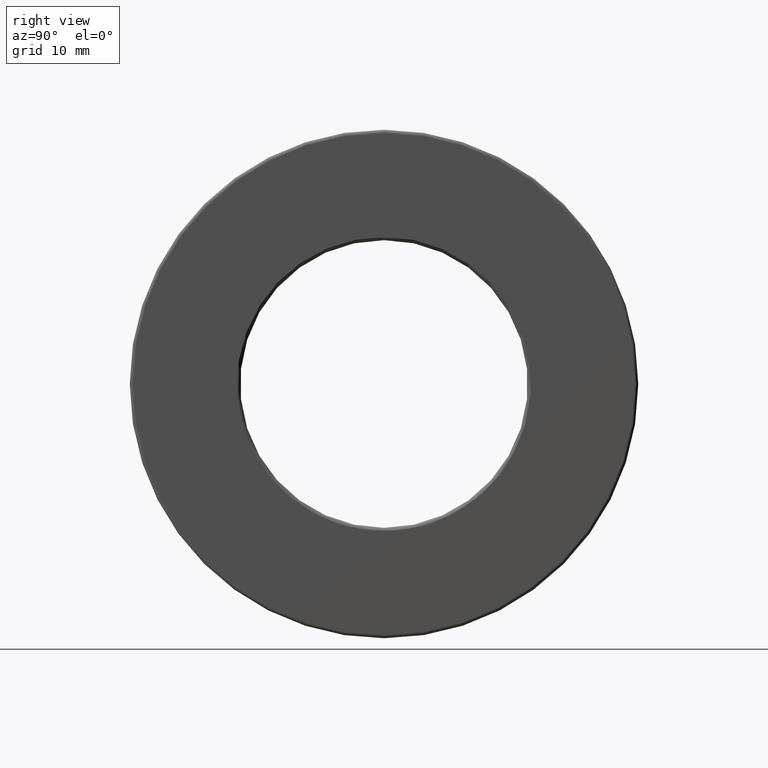
[diagram: clean part render]
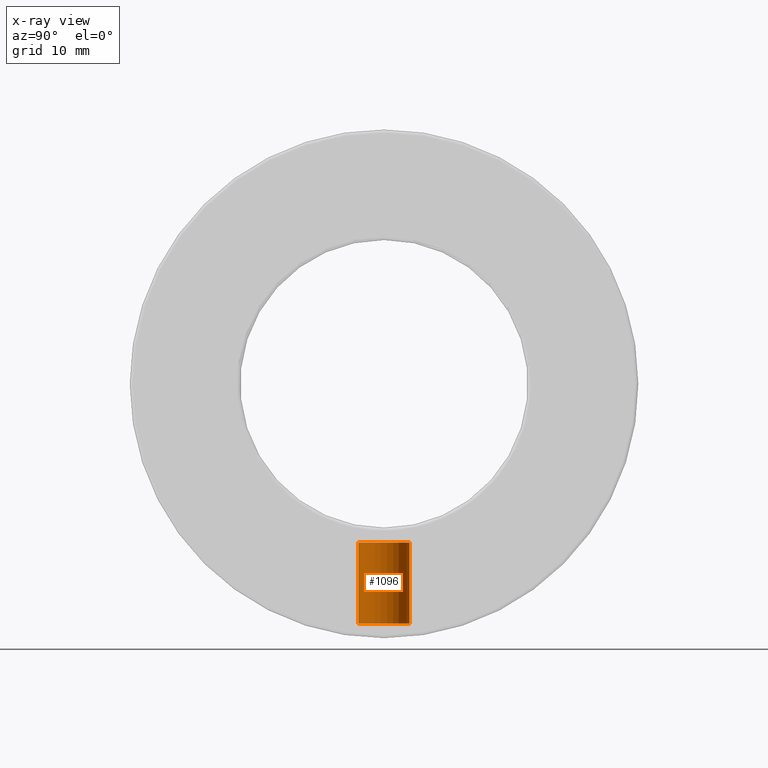
[diagram: x-ray — body ghosted, one internal face saturated and labeled with its STEP entity id]
A machine part, right view, then the same camera in x-ray: the body is ghosted and one INTERNAL B-rep face — a face not visible from any outside direction — is saturated and labeled: STEP entity #1096.
In plain terms, the highlighted cylindrical surface (bore or boss wall) has radius 3.9624 mm, axis along (0, -0, -1).
Its self-contained STEP definition (entity closure, byte-faithful):
#10 = CARTESIAN_POINT ( 'NONE',  ( 0.0000000000000000000, -5.086651875527089600E-015, -1.456874999999999900 ) ) ;
#40 = EDGE_LOOP ( 'NONE', ( #623 ) ) ;
#152 = DIRECTION ( 'NONE',  ( 0.0000000000000000000, 1.000000000000000000, -3.502369222646491400E-015 ) ) ;
#156 = EDGE_LOOP ( 'NONE', ( #634 ) ) ;
#326 = CIRCLE ( 'NONE', #1168, 0.1559999999999998600 ) ;
#367 = EDGE_CURVE ( 'NONE', #727, #727, #622, .T. ) ;
#414 = AXIS2_PLACEMENT_3D ( 'NONE', #626, #1071, #1314 ) ;
#440 = CARTESIAN_POINT ( 'NONE',  ( 0.0000000000000000000, 0.1559999999999966100, -0.9650000000000006400 ) ) ;
#445 = CARTESIAN_POINT ( 'NONE',  ( 0.0000000000000000000, -3.369279491983624200E-015, -0.9650000000000000800 ) ) ;
#508 = VERTEX_POINT ( 'NONE', #906 ) ;
#622 = CIRCLE ( 'NONE', #1080, 0.1560000000000000000 ) ;
#623 = ORIENTED_EDGE ( 'NONE', *, *, #367, .T. ) ;
#626 = CARTESIAN_POINT ( 'NONE',  ( 0.0000000000000000000, 0.0000000000000000000, 0.0000000000000000000 ) ) ;
#634 = ORIENTED_EDGE ( 'NONE', *, *, #1351, .F. ) ;
#666 = CYLINDRICAL_SURFACE ( 'NONE', #414, 0.1559999999999999200 ) ;
#708 = DIRECTION ( 'NONE',  ( 0.0000000000000000000, -3.491481338843133400E-015, -1.000000000000000000 ) ) ;
#710 = FACE_OUTER_BOUND ( 'NONE', #40, .T. ) ;
#727 = VERTEX_POINT ( 'NONE', #440 ) ;
#797 = DIRECTION ( 'NONE',  ( 0.0000000000000000000, -3.491481338843133400E-015, -1.000000000000000000 ) ) ;
#906 = CARTESIAN_POINT ( 'NONE',  ( 0.0000000000000000000, 0.1559999999999947500, -1.456875000000000600 ) ) ;
#917 = DIRECTION ( 'NONE',  ( 0.0000000000000000000, 1.000000000000000000, -3.502369222646494500E-015 ) ) ;
#1071 = DIRECTION ( 'NONE',  ( 0.0000000000000000000, -3.491481338843133400E-015, -1.000000000000000000 ) ) ;
#1080 = AXIS2_PLACEMENT_3D ( 'NONE', #445, #708, #152 ) ;
#1096 = ADVANCED_FACE ( 'NONE', ( #710, #1276 ), #666, .T. ) ;
#1168 = AXIS2_PLACEMENT_3D ( 'NONE', #10, #797, #917 ) ;
#1276 = FACE_OUTER_BOUND ( 'NONE', #156, .T. ) ;
#1314 = DIRECTION ( 'NONE',  ( 0.0000000000000000000, 1.000000000000000000, -3.491481338843133400E-015 ) ) ;
#1351 = EDGE_CURVE ( 'NONE', #508, #508, #326, .T. ) ;